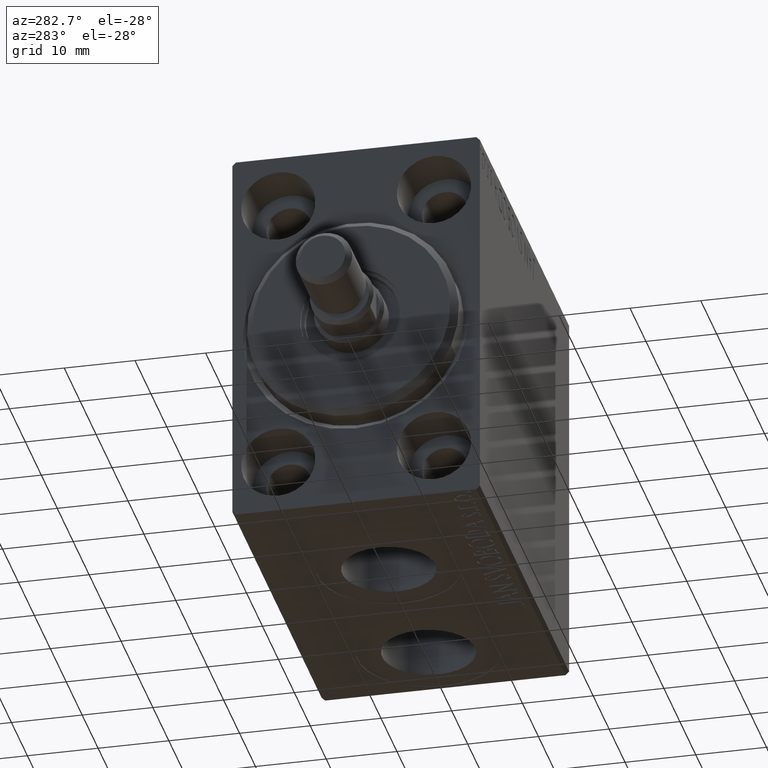
[diagram: clean part render]
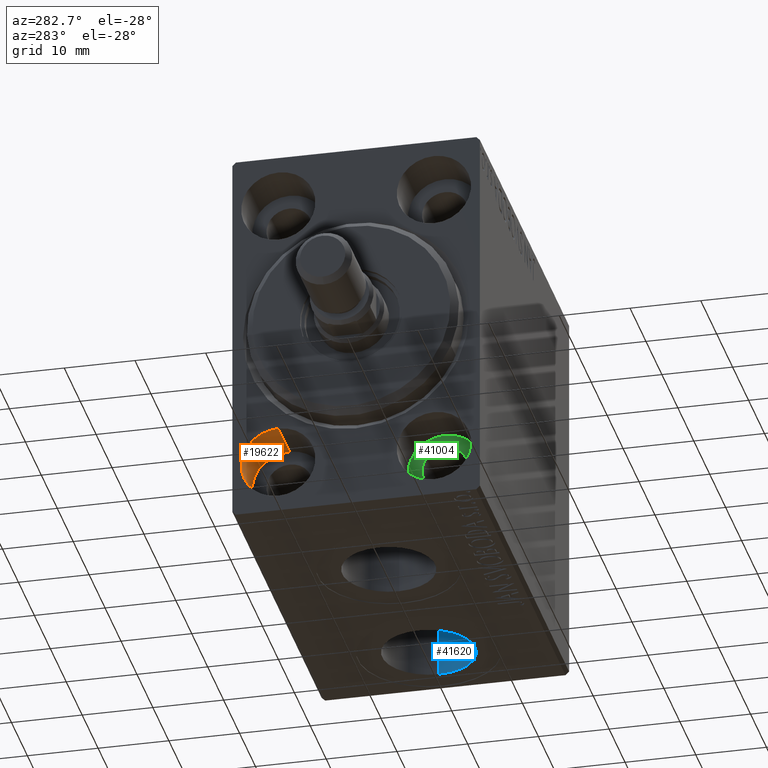
[diagram: same view with three faces highlighted in distinct colors, each labeled with its STEP entity id]
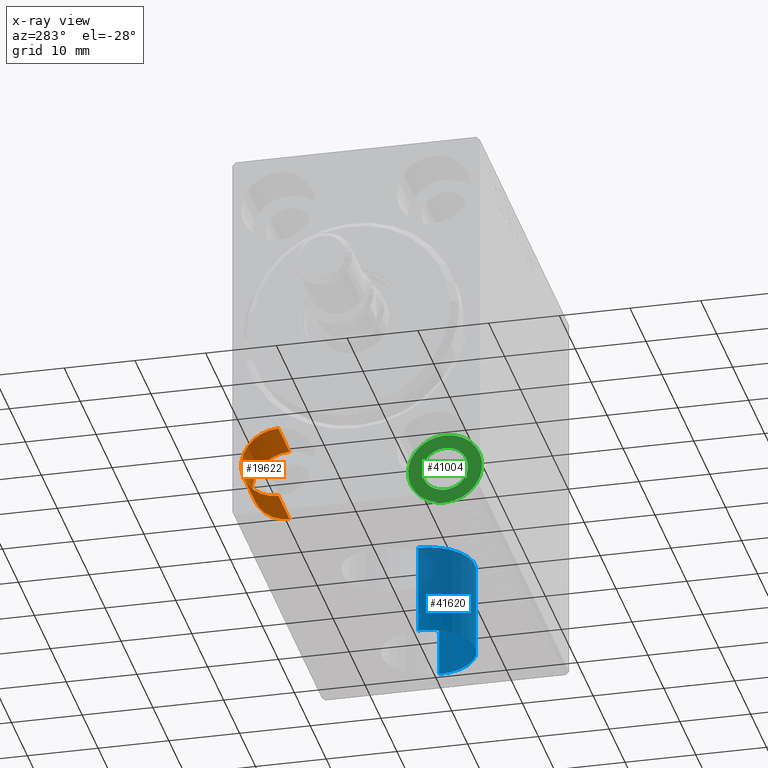
[diagram: x-ray of the same camera — body ghosted, the three highlighted faces saturated]
A machine part, auxiliary view with three faces highlighted in distinct colors.
The next image is the same camera in x-ray (body ghosted, the three faces saturated) — at least one of them is partly hidden behind the body in this view.
Their STEP definitions:

[orange] entity #19622 — the highlighted cylindrical surface (partial cylindrical patch) has radius 5.25 mm, axis along (-1, -0, -0).
#383 = CARTESIAN_POINT ( 'NONE',  ( 7.000000000000000000, 11.00000000000000355, -20.00000000000000000 ) ) ;
#1130 = CARTESIAN_POINT ( 'NONE',  ( 0.000000000000000000, 11.00000000000000355, -25.25000000000000000 ) ) ;
#1636 = EDGE_LOOP ( 'NONE', ( #32489, #27205, #30195, #20443 ) ) ;
#1800 = VERTEX_POINT ( 'NONE', #35233 ) ;
#2623 = CIRCLE ( 'NONE', #27780, 5.250000000000000888 ) ;
#2721 = DIRECTION ( 'NONE',  ( -1.000000000000000000, -0.000000000000000000, -0.000000000000000000 ) ) ;
#2829 = DIRECTION ( 'NONE',  ( 0.000000000000000000, 0.000000000000000000, 1.000000000000000000 ) ) ;
#6378 = DIRECTION ( 'NONE',  ( 0.000000000000000000, 0.000000000000000000, 1.000000000000000000 ) ) ;
#7317 = CARTESIAN_POINT ( 'NONE',  ( 7.000000000000000000, 11.00000000000000355, -25.25000000000000000 ) ) ;
#7767 = EDGE_CURVE ( 'NONE', #34844, #14637, #21575, .T. ) ;
#9652 = AXIS2_PLACEMENT_3D ( 'NONE', #24136, #37230, #6378 ) ;
#9913 = CARTESIAN_POINT ( 'NONE',  ( 7.000000000000000000, 11.00000000000000355, -14.75000000000000000 ) ) ;
#10685 = LINE ( 'NONE', #7317, #15473 ) ;
#13123 = CYLINDRICAL_SURFACE ( 'NONE', #9652, 5.250000000000000888 ) ;
#13421 = VERTEX_POINT ( 'NONE', #25111 ) ;
#14537 = DIRECTION ( 'NONE',  ( -1.000000000000000000, 0.000000000000000000, 0.000000000000000000 ) ) ;
#14637 = VERTEX_POINT ( 'NONE', #1130 ) ;
#15473 = VECTOR ( 'NONE', #28011, 1000.000000000000000 ) ;
#19622 = ADVANCED_FACE ( 'NONE', ( #23479 ), #13123, .F. ) ;
#20443 = ORIENTED_EDGE ( 'NONE', *, *, #7767, .T. ) ;
#21575 = CIRCLE ( 'NONE', #30201, 5.250000000000000888 ) ;
#23479 = FACE_OUTER_BOUND ( 'NONE', #1636, .T. ) ;
#24080 = LINE ( 'NONE', #9913, #31965 ) ;
#24136 = CARTESIAN_POINT ( 'NONE',  ( 7.000000000000000000, 11.00000000000000355, -20.00000000000000000 ) ) ;
#24813 = EDGE_CURVE ( 'NONE', #13421, #34844, #24080, .T. ) ;
#25111 = CARTESIAN_POINT ( 'NONE',  ( 7.000000000000000000, 11.00000000000000355, -14.75000000000000000 ) ) ;
#27205 = ORIENTED_EDGE ( 'NONE', *, *, #44360, .F. ) ;
#27780 = AXIS2_PLACEMENT_3D ( 'NONE', #383, #14537, #41791 ) ;
#28011 = DIRECTION ( 'NONE',  ( -1.000000000000000000, -0.000000000000000000, -0.000000000000000000 ) ) ;
#30195 = ORIENTED_EDGE ( 'NONE', *, *, #24813, .T. ) ;
#30201 = AXIS2_PLACEMENT_3D ( 'NONE', #33003, #36609, #2829 ) ;
#31965 = VECTOR ( 'NONE', #2721, 1000.000000000000000 ) ;
#32489 = ORIENTED_EDGE ( 'NONE', *, *, #37066, .F. ) ;
#33003 = CARTESIAN_POINT ( 'NONE',  ( 0.000000000000000000, 11.00000000000000355, -20.00000000000000000 ) ) ;
#34844 = VERTEX_POINT ( 'NONE', #40287 ) ;
#35233 = CARTESIAN_POINT ( 'NONE',  ( 7.000000000000000000, 11.00000000000000355, -25.25000000000000000 ) ) ;
#36609 = DIRECTION ( 'NONE',  ( -1.000000000000000000, 0.000000000000000000, 0.000000000000000000 ) ) ;
#37066 = EDGE_CURVE ( 'NONE', #1800, #14637, #10685, .T. ) ;
#37230 = DIRECTION ( 'NONE',  ( -1.000000000000000000, -0.000000000000000000, -0.000000000000000000 ) ) ;
#40287 = CARTESIAN_POINT ( 'NONE',  ( 0.000000000000000000, 11.00000000000000355, -14.75000000000000000 ) ) ;
#41791 = DIRECTION ( 'NONE',  ( 0.000000000000000000, 0.000000000000000000, 1.000000000000000000 ) ) ;
#44360 = EDGE_CURVE ( 'NONE', #13421, #1800, #2623, .T. ) ;

[blue] entity #41620 — the highlighted cylindrical surface (partial cylindrical patch) has radius 6.58 mm, axis along (-0, -0, -1).
#156 = CARTESIAN_POINT ( 'NONE',  ( 52.07999999999999829, -4.982785615438341465E-15, -14.50000000000000355 ) ) ;
#1262 = CIRCLE ( 'NONE', #35790, 6.580000000000002736 ) ;
#1759 = CARTESIAN_POINT ( 'NONE',  ( 38.91999999999999460, -5.788603209277299718E-15, -27.40000000000000568 ) ) ;
#2464 = LINE ( 'NONE', #26984, #21844 ) ;
#3719 = CARTESIAN_POINT ( 'NONE',  ( 52.07999999999999829, -4.982785615438341465E-15, -14.50000000000000355 ) ) ;
#3880 = EDGE_CURVE ( 'NONE', #44046, #3967, #23733, .T. ) ;
#3967 = VERTEX_POINT ( 'NONE', #1759 ) ;
#5280 = CYLINDRICAL_SURFACE ( 'NONE', #26330, 6.580000000000002736 ) ;
#6286 = VECTOR ( 'NONE', #20174, 1000.000000000000000 ) ;
#6600 = VERTEX_POINT ( 'NONE', #43175 ) ;
#9540 = DIRECTION ( 'NONE',  ( -0.000000000000000000, -0.000000000000000000, -1.000000000000000000 ) ) ;
#12204 = EDGE_LOOP ( 'NONE', ( #16485, #30470, #32359, #18388 ) ) ;
#14163 = DIRECTION ( 'NONE',  ( 0.000000000000000000, 0.000000000000000000, -1.000000000000000000 ) ) ;
#16485 = ORIENTED_EDGE ( 'NONE', *, *, #32452, .F. ) ;
#18388 = ORIENTED_EDGE ( 'NONE', *, *, #23901, .F. ) ;
#19001 = DIRECTION ( 'NONE',  ( -1.000000000000000000, 0.000000000000000000, 0.000000000000000000 ) ) ;
#19009 = DIRECTION ( 'NONE',  ( 0.000000000000000000, 0.000000000000000000, -1.000000000000000000 ) ) ;
#20174 = DIRECTION ( 'NONE',  ( -0.000000000000000000, -0.000000000000000000, -1.000000000000000000 ) ) ;
#21844 = VECTOR ( 'NONE', #44547, 1000.000000000000000 ) ;
#23733 = CIRCLE ( 'NONE', #26588, 6.580000000000002736 ) ;
#23901 = EDGE_CURVE ( 'NONE', #6600, #3967, #2464, .T. ) ;
#25366 = CARTESIAN_POINT ( 'NONE',  ( 52.07999999999999829, -4.982785615438341465E-15, -27.40000000000000568 ) ) ;
#26330 = AXIS2_PLACEMENT_3D ( 'NONE', #30043, #9540, #19001 ) ;
#26429 = FACE_OUTER_BOUND ( 'NONE', #12204, .T. ) ;
#26588 = AXIS2_PLACEMENT_3D ( 'NONE', #41848, #14163, #27890 ) ;
#26984 = CARTESIAN_POINT ( 'NONE',  ( 38.91999999999999460, -5.788603209277299718E-15, -14.50000000000000355 ) ) ;
#27890 = DIRECTION ( 'NONE',  ( -1.000000000000000000, 0.000000000000000000, 0.000000000000000000 ) ) ;
#29398 = VERTEX_POINT ( 'NONE', #3719 ) ;
#30043 = CARTESIAN_POINT ( 'NONE',  ( 45.50000000000000000, -5.788603209277299718E-15, -14.50000000000000355 ) ) ;
#30470 = ORIENTED_EDGE ( 'NONE', *, *, #31480, .T. ) ;
#31480 = EDGE_CURVE ( 'NONE', #29398, #44046, #34372, .T. ) ;
#32359 = ORIENTED_EDGE ( 'NONE', *, *, #3880, .T. ) ;
#32452 = EDGE_CURVE ( 'NONE', #29398, #6600, #1262, .T. ) ;
#34372 = LINE ( 'NONE', #156, #6286 ) ;
#35790 = AXIS2_PLACEMENT_3D ( 'NONE', #43335, #19009, #36807 ) ;
#36807 = DIRECTION ( 'NONE',  ( -1.000000000000000000, 0.000000000000000000, 0.000000000000000000 ) ) ;
#41620 = ADVANCED_FACE ( 'NONE', ( #26429 ), #5280, .F. ) ;
#41848 = CARTESIAN_POINT ( 'NONE',  ( 45.50000000000000000, -5.788603209277299718E-15, -27.40000000000000568 ) ) ;
#43175 = CARTESIAN_POINT ( 'NONE',  ( 38.91999999999999460, -5.788603209277299718E-15, -14.50000000000000355 ) ) ;
#43335 = CARTESIAN_POINT ( 'NONE',  ( 45.50000000000000000, -5.788603209277299718E-15, -14.50000000000000355 ) ) ;
#44046 = VERTEX_POINT ( 'NONE', #25366 ) ;
#44547 = DIRECTION ( 'NONE',  ( -0.000000000000000000, -0.000000000000000000, -1.000000000000000000 ) ) ;

[green] entity #41004 — the highlighted planar face has unit normal (-1, 0, 0).
#1068 = DIRECTION ( 'NONE',  ( -1.000000000000000000, 0.000000000000000000, 0.000000000000000000 ) ) ;
#1111 = VERTEX_POINT ( 'NONE', #6372 ) ;
#3437 = CARTESIAN_POINT ( 'NONE',  ( 6.999999999999999112, -11.00000000000000355, -20.00000000000000000 ) ) ;
#3944 = CIRCLE ( 'NONE', #16851, 5.250000000000000888 ) ;
#4009 = CARTESIAN_POINT ( 'NONE',  ( 6.999999999999999112, -11.00000000000000355, -20.00000000000000000 ) ) ;
#4675 = AXIS2_PLACEMENT_3D ( 'NONE', #19172, #39909, #32930 ) ;
#5289 = CARTESIAN_POINT ( 'NONE',  ( 7.000000000000000000, -11.00000000000000355, -20.00000000000000000 ) ) ;
#6372 = CARTESIAN_POINT ( 'NONE',  ( 7.000000000000000000, -11.00000000000000355, -14.75000000000000000 ) ) ;
#7384 = DIRECTION ( 'NONE',  ( 0.000000000000000000, 0.000000000000000000, 1.000000000000000000 ) ) ;
#7540 = CIRCLE ( 'NONE', #34158, 3.249999999999999556 ) ;
#9305 = DIRECTION ( 'NONE',  ( 0.000000000000000000, 0.000000000000000000, 1.000000000000000000 ) ) ;
#12427 = FACE_OUTER_BOUND ( 'NONE', #18005, .T. ) ;
#13776 = DIRECTION ( 'NONE',  ( -1.000000000000000000, 0.000000000000000000, 0.000000000000000000 ) ) ;
#14217 = AXIS2_PLACEMENT_3D ( 'NONE', #5289, #19671, #40188 ) ;
#14866 = ORIENTED_EDGE ( 'NONE', *, *, #20401, .T. ) ;
#15247 = ORIENTED_EDGE ( 'NONE', *, *, #26028, .F. ) ;
#16851 = AXIS2_PLACEMENT_3D ( 'NONE', #28243, #28471, #9305 ) ;
#17304 = EDGE_CURVE ( 'NONE', #42042, #31650, #20348, .T. ) ;
#18005 = EDGE_LOOP ( 'NONE', ( #35876, #14866 ) ) ;
#18763 = CARTESIAN_POINT ( 'NONE',  ( 7.000000000000000000, -11.00000000000000355, -25.25000000000000000 ) ) ;
#19172 = CARTESIAN_POINT ( 'NONE',  ( 7.000000000000000000, 0.000000000000000000, 0.000000000000000000 ) ) ;
#19392 = FACE_BOUND ( 'NONE', #23186, .T. ) ;
#19671 = DIRECTION ( 'NONE',  ( -1.000000000000000000, 0.000000000000000000, 0.000000000000000000 ) ) ;
#20348 = CIRCLE ( 'NONE', #27554, 3.249999999999999556 ) ;
#20362 = VERTEX_POINT ( 'NONE', #18763 ) ;
#20401 = EDGE_CURVE ( 'NONE', #20362, #1111, #3944, .T. ) ;
#23186 = EDGE_LOOP ( 'NONE', ( #15247, #42496 ) ) ;
#26028 = EDGE_CURVE ( 'NONE', #31650, #42042, #7540, .T. ) ;
#26147 = PLANE ( 'NONE',  #4675 ) ;
#27554 = AXIS2_PLACEMENT_3D ( 'NONE', #3437, #13776, #31111 ) ;
#28243 = CARTESIAN_POINT ( 'NONE',  ( 7.000000000000000000, -11.00000000000000355, -20.00000000000000000 ) ) ;
#28471 = DIRECTION ( 'NONE',  ( -1.000000000000000000, 0.000000000000000000, 0.000000000000000000 ) ) ;
#31111 = DIRECTION ( 'NONE',  ( 0.000000000000000000, 0.000000000000000000, 1.000000000000000000 ) ) ;
#31650 = VERTEX_POINT ( 'NONE', #39972 ) ;
#32457 = EDGE_CURVE ( 'NONE', #1111, #20362, #38664, .T. ) ;
#32930 = DIRECTION ( 'NONE',  ( 0.000000000000000000, 0.000000000000000000, 1.000000000000000000 ) ) ;
#34158 = AXIS2_PLACEMENT_3D ( 'NONE', #4009, #1068, #7384 ) ;
#35876 = ORIENTED_EDGE ( 'NONE', *, *, #32457, .T. ) ;
#36754 = CARTESIAN_POINT ( 'NONE',  ( 6.999999999999999112, -11.00000000000000355, -23.25000000000000000 ) ) ;
#38664 = CIRCLE ( 'NONE', #14217, 5.250000000000000888 ) ;
#39909 = DIRECTION ( 'NONE',  ( -1.000000000000000000, 0.000000000000000000, 0.000000000000000000 ) ) ;
#39972 = CARTESIAN_POINT ( 'NONE',  ( 6.999999999999999112, -11.00000000000000355, -16.75000000000000000 ) ) ;
#40188 = DIRECTION ( 'NONE',  ( 0.000000000000000000, 0.000000000000000000, 1.000000000000000000 ) ) ;
#41004 = ADVANCED_FACE ( 'NONE', ( #19392, #12427 ), #26147, .T. ) ;
#42042 = VERTEX_POINT ( 'NONE', #36754 ) ;
#42496 = ORIENTED_EDGE ( 'NONE', *, *, #17304, .F. ) ;